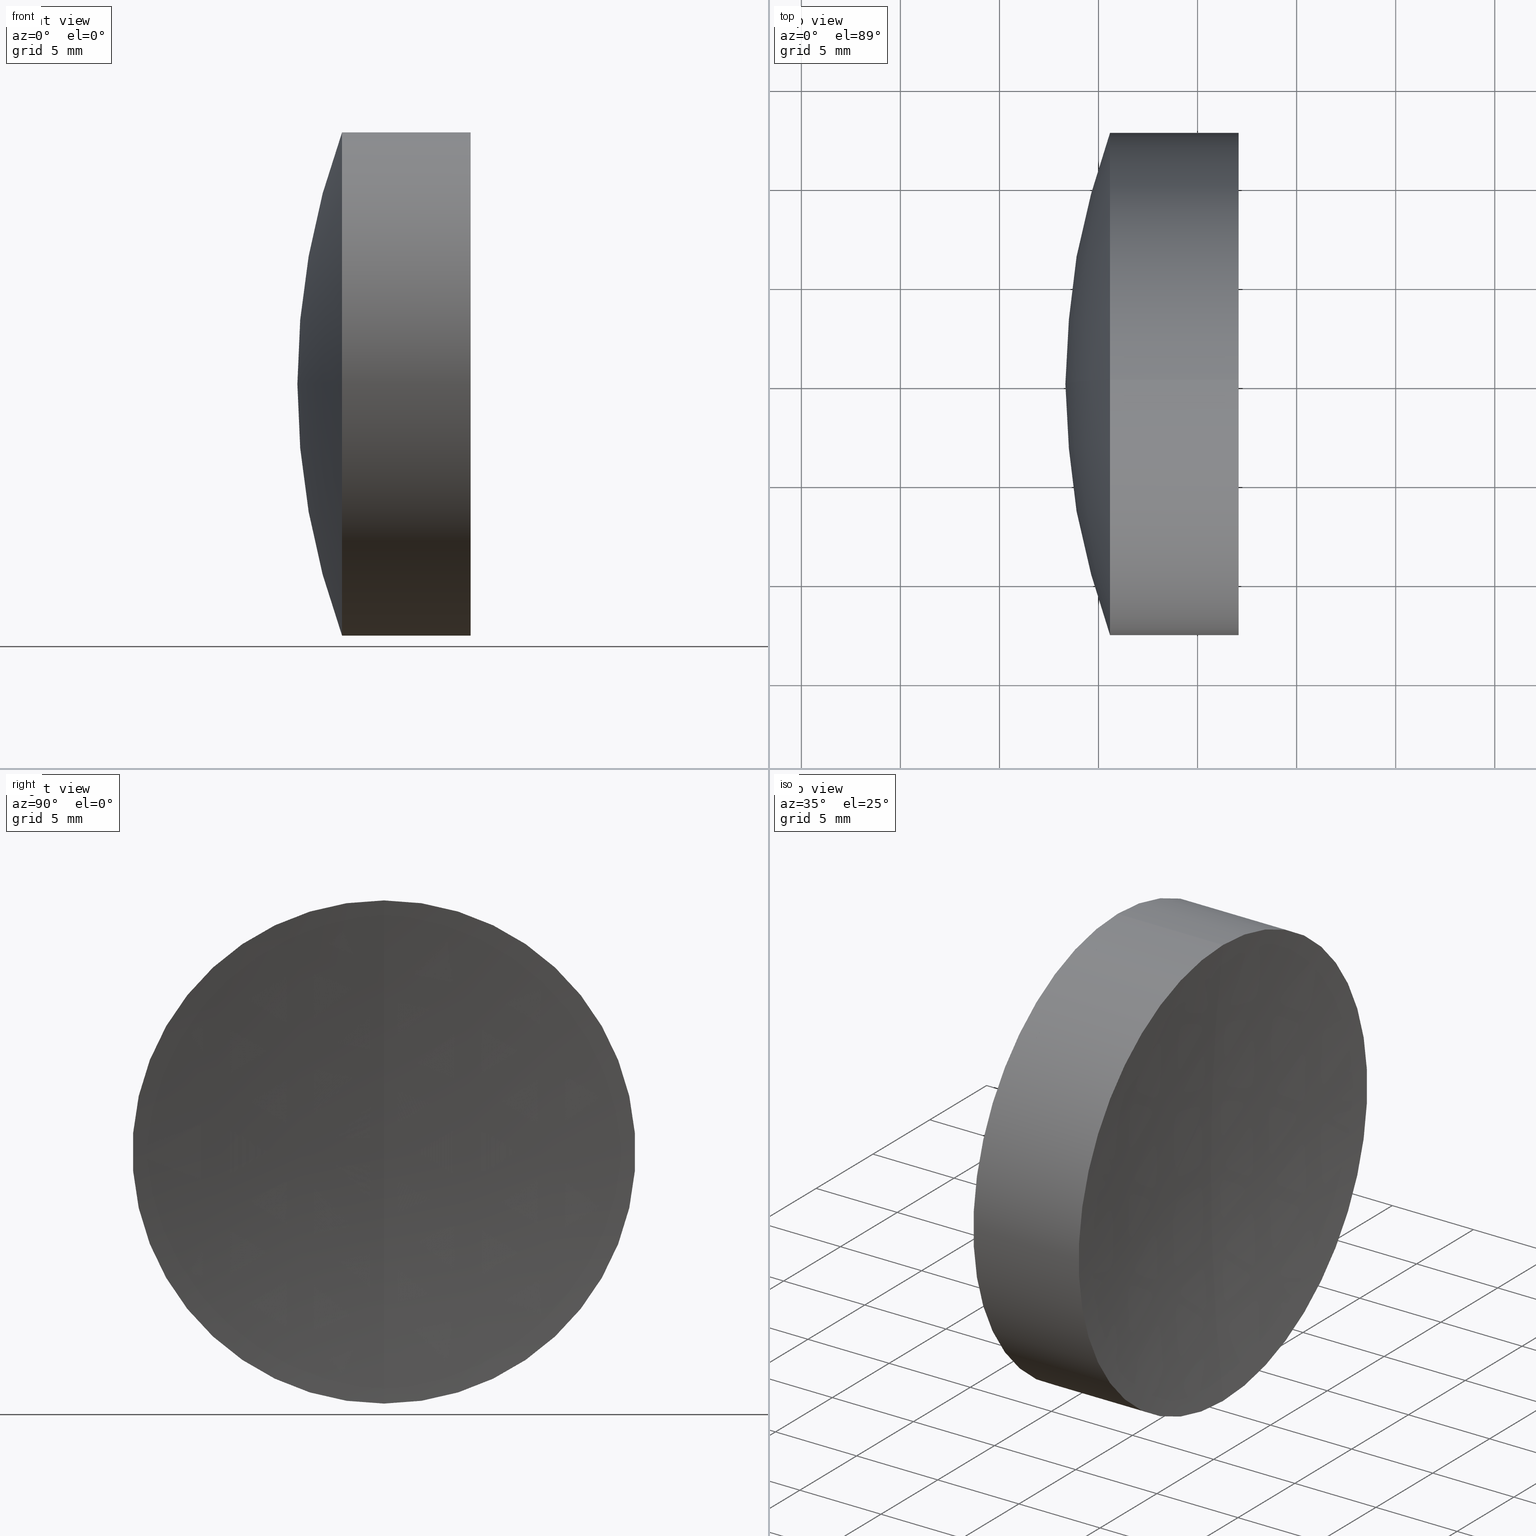
[diagram: canonical four-view strip — front | top / right | iso, engineering-drawing reading convention]
A machine part, canonical four-view strip (front | top / right | iso — engineering-drawing reading convention). The complete STEP part file that produces these views, byte-faithful:
ISO-10303-21;
HEADER;
FILE_DESCRIPTION (( 'STEP AP214' ),
    '1' );
FILE_NAME ('145166.STEP',
    '2019-06-11T05:54:42',
    ( 'user' ),
    ( '΢���й�' ),
    'SwSTEP 2.0',
    'SolidWorks 2016',
    '' );
FILE_SCHEMA (( 'AUTOMOTIVE_DESIGN' ));
ENDSEC;

DATA;
#1 = VERTEX_POINT ( 'NONE', #102 ) ;
#2 = MECHANICAL_DESIGN_GEOMETRIC_PRESENTATION_REPRESENTATION (  '', ( #302 ), #16 ) ;
#3 = AXIS2_PLACEMENT_3D ( 'NONE', #156, #148, #331 ) ;
#4 = ADVANCED_FACE ( 'NONE', ( #270 ), #190, .F. ) ;
#5 = AXIS2_PLACEMENT_3D ( 'NONE', #325, #171, #8 ) ;
#6 = MANIFOLD_SOLID_BREP ( '��ת2', #263 ) ;
#7 = EDGE_LOOP ( 'NONE', ( #238, #172, #186, #173 ) ) ;
#8 = DIRECTION ( 'NONE',  ( 0.0000000000000000000, 0.0000000000000000000, -1.000000000000000000 ) ) ;
#9 = CARTESIAN_POINT ( 'NONE',  ( 51.59793110503332500, 1.555301434917138800E-015, -12.70000000000000300 ) ) ;
#10 = CYLINDRICAL_SURFACE ( 'NONE', #269, 12.70000000000002100 ) ;
#11 = DIRECTION ( 'NONE',  ( 0.0000000000000000000, 0.0000000000000000000, 1.000000000000000000 ) ) ;
#12 = DIRECTION ( 'NONE',  ( 0.0000000000000000000, 1.000000000000000000, 0.0000000000000000000 ) ) ;
#13 = DIRECTION ( 'NONE',  ( -1.000000000000000000, -0.0000000000000000000, -0.0000000000000000000 ) ) ;
#14 = CARTESIAN_POINT ( 'NONE',  ( 50.58156345236027800, 0.0000000000000000000, 0.0000000000000000000 ) ) ;
#15 = DIRECTION ( 'NONE',  ( -1.000000000000000000, -0.0000000000000000000, -0.0000000000000000000 ) ) ;
#16 =( GEOMETRIC_REPRESENTATION_CONTEXT ( 3 ) GLOBAL_UNCERTAINTY_ASSIGNED_CONTEXT ( ( #223 ) ) GLOBAL_UNIT_ASSIGNED_CONTEXT ( ( #231, #54, #21 ) ) REPRESENTATION_CONTEXT ( 'NONE', 'WORKASPACE' ) );
#17 = DIRECTION ( 'NONE',  ( 0.0000000000000000000, 0.0000000000000000000, -1.000000000000000000 ) ) ;
#18 = DIRECTION ( 'NONE',  ( 0.0000000000000000000, 0.0000000000000000000, 1.000000000000000000 ) ) ;
#19 = CARTESIAN_POINT ( 'NONE',  ( -0.8160621761658039000, 1.555301434917138400E-015, -12.69999999999999900 ) ) ;
#20 = AXIS2_PLACEMENT_3D ( 'NONE', #45, #276, #55 ) ;
#21 =( NAMED_UNIT ( * ) SI_UNIT ( $, .STERADIAN. ) SOLID_ANGLE_UNIT ( ) );
#22 = ORIENTED_EDGE ( 'NONE', *, *, #33, .F. ) ;
#23 = FILL_AREA_STYLE ('',( #70 ) ) ;
#24 = STYLED_ITEM ( 'NONE', ( #164 ), #6 ) ;
#25 = DIRECTION ( 'NONE',  ( 0.0000000000000000000, 1.000000000000000000, -0.0000000000000000000 ) ) ;
#26 = CYLINDRICAL_SURFACE ( 'NONE', #217, 12.69999999999999900 ) ;
#27 = DIRECTION ( 'NONE',  ( 0.0000000000000000000, 0.0000000000000000000, 1.000000000000000000 ) ) ;
#28 =( GEOMETRIC_REPRESENTATION_CONTEXT ( 3 ) GLOBAL_UNCERTAINTY_ASSIGNED_CONTEXT ( ( #322 ) ) GLOBAL_UNIT_ASSIGNED_CONTEXT ( ( #285, #57, #313 ) ) REPRESENTATION_CONTEXT ( 'NONE', 'WORKASPACE' ) );
#29 = CIRCLE ( 'NONE', #208, 108.5999999999999900 ) ;
#30 = SURFACE_STYLE_FILL_AREA ( #314 ) ;
#31 = VERTEX_POINT ( 'NONE', #9 ) ;
#32 = CIRCLE ( 'NONE', #137, 108.5999999999999900 ) ;
#33 = EDGE_CURVE ( 'NONE', #229, #253, #242, .T. ) ;
#34 = ORIENTED_EDGE ( 'NONE', *, *, #131, .T. ) ;
#35 = AXIS2_PLACEMENT_3D ( 'NONE', #78, #107, #158 ) ;
#36 = CIRCLE ( 'NONE', #241, 47.50000000000009900 ) ;
#37 = ADVANCED_FACE ( 'NONE', ( #202 ), #53, .T. ) ;
#38 = PRESENTATION_LAYER_ASSIGNMENT (  '', '', ( #95 ) ) ;
#39 = COLOUR_RGB ( '',1.000000000000000000, 1.000000000000000000, 1.000000000000000000 ) ;
#40 = EDGE_LOOP ( 'NONE', ( #230, #61, #246 ) ) ;
#41 = CARTESIAN_POINT ( 'NONE',  ( 57.07234192546903300, 0.0000000000000000000, -12.70000000000000300 ) ) ;
#42 = LINE ( 'NONE', #103, #310 ) ;
#43 = DIRECTION ( 'NONE',  ( -1.000000000000000000, -0.0000000000000000000, -0.0000000000000000000 ) ) ;
#44 = EDGE_LOOP ( 'NONE', ( #65, #67, #121 ) ) ;
#45 = CARTESIAN_POINT ( 'NONE',  ( 85.22719809801223800, 0.0000000000000000000, 1.005188016315488500E-014 ) ) ;
#46 = CARTESIAN_POINT ( 'NONE',  ( 51.59793110503332500, 0.0000000000000000000, 0.0000000000000000000 ) ) ;
#47 = CIRCLE ( 'NONE', #315, 47.50000000000009900 ) ;
#48 = MECHANICAL_DESIGN_GEOMETRIC_PRESENTATION_REPRESENTATION (  '', ( #95 ), #28 ) ;
#49 = DIRECTION ( 'NONE',  ( -0.0000000000000000000, -1.000000000000000000, -0.0000000000000000000 ) ) ;
#50 = DIRECTION ( 'NONE',  ( 0.0000000000000000000, 0.0000000000000000000, 1.000000000000000000 ) ) ;
#51 = DIRECTION ( 'NONE',  ( -0.0000000000000000000, -1.000000000000000000, -0.0000000000000000000 ) ) ;
#52 = DIRECTION ( 'NONE',  ( -1.000000000000000000, -0.0000000000000000000, -0.0000000000000000000 ) ) ;
#53 = CYLINDRICAL_SURFACE ( 'NONE', #335, 12.70000000000002100 ) ;
#54 =( NAMED_UNIT ( * ) PLANE_ANGLE_UNIT ( ) SI_UNIT ( $, .RADIAN. ) );
#55 = DIRECTION ( 'NONE',  ( 0.0000000000000000000, 0.0000000000000000000, -1.000000000000000000 ) ) ;
#56 = VERTEX_POINT ( 'NONE', #41 ) ;
#57 =( NAMED_UNIT ( * ) PLANE_ANGLE_UNIT ( ) SI_UNIT ( $, .RADIAN. ) );
#58 = ORIENTED_EDGE ( 'NONE', *, *, #332, .F. ) ;
#59 = AXIS2_PLACEMENT_3D ( 'NONE', #160, #226, #149 ) ;
#60 = AXIS2_PLACEMENT_3D ( 'NONE', #228, #52, #204 ) ;
#61 = ORIENTED_EDGE ( 'NONE', *, *, #154, .T. ) ;
#62 = ORIENTED_EDGE ( 'NONE', *, *, #232, .T. ) ;
#63 = PRESENTATION_STYLE_ASSIGNMENT (( #343 ) ) ;
#64 = AXIS2_PLACEMENT_3D ( 'NONE', #295, #90, #271 ) ;
#65 = ORIENTED_EDGE ( 'NONE', *, *, #154, .F. ) ;
#66 = COLOUR_RGB ( '',1.000000000000000000, 1.000000000000000000, 1.000000000000000000 ) ;
#67 = ORIENTED_EDGE ( 'NONE', *, *, #188, .T. ) ;
#68 = DIRECTION ( 'NONE',  ( 0.0000000000000000000, 0.0000000000000000000, 1.000000000000000000 ) ) ;
#69 = FACE_OUTER_BOUND ( 'NONE', #44, .T. ) ;
#70 = FILL_AREA_STYLE_COLOUR ( '', #198 ) ;
#71 = DIRECTION ( 'NONE',  ( 0.0000000000000000000, 0.0000000000000000000, 1.000000000000000000 ) ) ;
#72 = PRODUCT_DEFINITION_SHAPE ( 'NONE', 'NONE',  #87 ) ;
#73 = DIRECTION ( 'NONE',  ( 0.0000000000000000000, 1.224646799147353200E-016, -1.000000000000000000 ) ) ;
#74 = ORIENTED_EDGE ( 'NONE', *, *, #86, .F. ) ;
#75 = PRESENTATION_LAYER_ASSIGNMENT (  '', '', ( #24 ) ) ;
#76 = AXIS2_PLACEMENT_3D ( 'NONE', #255, #132, #309 ) ;
#77 = SPHERICAL_SURFACE ( 'NONE', #20, 36.89999999999999900 ) ;
#78 = CARTESIAN_POINT ( 'NONE',  ( 85.22719809801223800, 0.0000000000000000000, 1.005188016315488500E-014 ) ) ;
#79 = LINE ( 'NONE', #19, #80 ) ;
#80 = VECTOR ( 'NONE', #182, 1000.000000000000000 ) ;
#81 = FACE_OUTER_BOUND ( 'NONE', #278, .T. ) ;
#82 = ORIENTED_EDGE ( 'NONE', *, *, #116, .F. ) ;
#83 = EDGE_CURVE ( 'NONE', #93, #31, #316, .T. ) ;
#84 = CIRCLE ( 'NONE', #250, 12.70000000000002100 ) ;
#85 = ADVANCED_FACE ( 'NONE', ( #183 ), #243, .T. ) ;
#86 = EDGE_CURVE ( 'NONE', #1, #253, #280, .T. ) ;
#87 = PRODUCT_DEFINITION ( 'δ֪', '', #111, #215 ) ;
#88 = EDGE_LOOP ( 'NONE', ( #210, #240, #82 ) ) ;
#89 = EDGE_CURVE ( 'NONE', #345, #212, #119, .T. ) ;
#90 = DIRECTION ( 'NONE',  ( 0.0000000000000000000, 1.000000000000000000, 0.0000000000000000000 ) ) ;
#91 = CIRCLE ( 'NONE', #199, 12.70000000000002100 ) ;
#92 = DIRECTION ( 'NONE',  ( 0.0000000000000000000, 1.000000000000000000, 0.0000000000000000000 ) ) ;
#93 = VERTEX_POINT ( 'NONE', #249 ) ;
#94 = DIRECTION ( 'NONE',  ( 0.0000000000000000000, 0.0000000000000000000, 1.000000000000000000 ) ) ;
#95 = STYLED_ITEM ( 'NONE', ( #339 ), #110 ) ;
#96 = CARTESIAN_POINT ( 'NONE',  ( 50.58156345236027800, -1.555301434917137600E-015, 12.70000000000000300 ) ) ;
#97 = CARTESIAN_POINT ( 'NONE',  ( 164.9271980980123300, 0.0000000000000000000, 0.0000000000000000000 ) ) ;
#98 = CIRCLE ( 'NONE', #237, 12.70000000000002100 ) ;
#99 = CARTESIAN_POINT ( 'NONE',  ( 57.07234192546902600, 0.0000000000000000000, 0.0000000000000000000 ) ) ;
#100 = EDGE_CURVE ( 'NONE', #56, #265, #254, .T. ) ;
#101 = DIRECTION ( 'NONE',  ( 0.0000000000000000000, -1.224646799147353000E-016, 1.000000000000000000 ) ) ;
#102 = CARTESIAN_POINT ( 'NONE',  ( 57.07234192546903300, -1.555301434917139000E-015, 12.70000000000000300 ) ) ;
#103 = CARTESIAN_POINT ( 'NONE',  ( -0.8160621761658039000, 0.0000000000000000000, 12.69999999999999900 ) ) ;
#104 = ORIENTED_EDGE ( 'NONE', *, *, #311, .T. ) ;
#105 = APPLICATION_CONTEXT ( 'automotive_design' ) ;
#106 = CIRCLE ( 'NONE', #169, 12.70000000000000100 ) ;
#107 = DIRECTION ( 'NONE',  ( 0.0000000000000000000, -1.000000000000000000, -1.224646799147353200E-016 ) ) ;
#108 = EDGE_LOOP ( 'NONE', ( #306, #320, #290 ) ) ;
#109 = EDGE_CURVE ( 'NONE', #345, #112, #264, .T. ) ;
#110 = MANIFOLD_SOLID_BREP ( '��ת1', #122 ) ;
#111 = PRODUCT_DEFINITION_FORMATION_WITH_SPECIFIED_SOURCE ( '�κ�', '', #319, .NOT_KNOWN. ) ;
#112 = VERTEX_POINT ( 'NONE', #258 ) ;
#113 = ADVANCED_FACE ( 'NONE', ( #281 ), #77, .T. ) ;
#114 = ADVANCED_FACE ( 'NONE', ( #81 ), #282, .F. ) ;
#115 = AXIS2_PLACEMENT_3D ( 'NONE', #220, #327, #162 ) ;
#116 = EDGE_CURVE ( 'NONE', #212, #112, #144, .T. ) ;
#117 = APPLICATION_PROTOCOL_DEFINITION ( 'draft international standard', 'automotive_design', 1998, #105 ) ;
#118 = DIRECTION ( 'NONE',  ( -1.000000000000000000, -0.0000000000000000000, -0.0000000000000000000 ) ) ;
#119 = CIRCLE ( 'NONE', #267, 12.69999999999999900 ) ;
#120 = CARTESIAN_POINT ( 'NONE',  ( -0.5519199926577972300, 1.555301434917141000E-015, -12.70000000000002100 ) ) ;
#121 = ORIENTED_EDGE ( 'NONE', *, *, #83, .F. ) ;
#122 = CLOSED_SHELL ( 'NONE', ( #142, #266, #214, #113, #170, #85 ) ) ;
#123 = EDGE_CURVE ( 'NONE', #56, #139, #29, .T. ) ;
#124 =( LENGTH_UNIT ( ) NAMED_UNIT ( * ) SI_UNIT ( .MILLI., .METRE. ) );
#125 = DIRECTION ( 'NONE',  ( -1.000000000000000000, -0.0000000000000000000, -0.0000000000000000000 ) ) ;
#126 = ORIENTED_EDGE ( 'NONE', *, *, #161, .F. ) ;
#127 = DIRECTION ( 'NONE',  ( 0.0000000000000000000, 0.0000000000000000000, 1.000000000000000000 ) ) ;
#128 = PRODUCT_RELATED_PRODUCT_CATEGORY ( 'part', '', ( #319 ) ) ;
#129 = CARTESIAN_POINT ( 'NONE',  ( 50.58156345236027800, 0.0000000000000000000, -12.69999999999999200 ) ) ;
#130 = SURFACE_STYLE_FILL_AREA ( #342 ) ;
#131 = EDGE_CURVE ( 'NONE', #56, #1, #98, .T. ) ;
#132 = DIRECTION ( 'NONE',  ( 0.0000000000000000000, 0.0000000000000000000, 1.000000000000000000 ) ) ;
#133 = ORIENTED_EDGE ( 'NONE', *, *, #116, .T. ) ;
#134 = VERTEX_POINT ( 'NONE', #344 ) ;
#135 = CARTESIAN_POINT ( 'NONE',  ( 56.32719809801233200, 0.0000000000000000000, -6.649832119370127500E-015 ) ) ;
#136 = SURFACE_STYLE_FILL_AREA ( #23 ) ;
#137 = AXIS2_PLACEMENT_3D ( 'NONE', #97, #251, #73 ) ;
#138 = ORIENTED_EDGE ( 'NONE', *, *, #109, .F. ) ;
#139 = VERTEX_POINT ( 'NONE', #135 ) ;
#140 = FACE_OUTER_BOUND ( 'NONE', #146, .T. ) ;
#141 = ADVANCED_FACE ( 'NONE', ( #211 ), #163, .F. ) ;
#142 = ADVANCED_FACE ( 'NONE', ( #69 ), #273, .T. ) ;
#143 = ORIENTED_EDGE ( 'NONE', *, *, #100, .F. ) ;
#144 = CIRCLE ( 'NONE', #317, 36.89999999999999900 ) ;
#145 = CARTESIAN_POINT ( 'NONE',  ( -0.5519199926577972300, 0.0000000000000000000, 0.0000000000000000000 ) ) ;
#146 = EDGE_LOOP ( 'NONE', ( #272, #337, #192, #165 ) ) ;
#147 =( NAMED_UNIT ( * ) PLANE_ANGLE_UNIT ( ) SI_UNIT ( $, .RADIAN. ) );
#148 = DIRECTION ( 'NONE',  ( 0.0000000000000000000, 1.000000000000000000, 0.0000000000000000000 ) ) ;
#149 = DIRECTION ( 'NONE',  ( 0.0000000000000000000, 0.0000000000000000000, -1.000000000000000000 ) ) ;
#150 = AXIS2_PLACEMENT_3D ( 'NONE', #203, #51, #17 ) ;
#151 = DIRECTION ( 'NONE',  ( 0.0000000000000000000, 0.0000000000000000000, 1.000000000000000000 ) ) ;
#152 = DIRECTION ( 'NONE',  ( 0.0000000000000000000, 0.0000000000000000000, -1.000000000000000000 ) ) ;
#153 = CARTESIAN_POINT ( 'NONE',  ( 5.827198098012243800, 0.0000000000000000000, -1.207122003785225600E-014 ) ) ;
#154 = EDGE_CURVE ( 'NONE', #134, #93, #36, .T. ) ;
#155 = DIRECTION ( 'NONE',  ( -0.0000000000000000000, 1.000000000000000000, 1.224646799147353200E-016 ) ) ;
#156 = CARTESIAN_POINT ( 'NONE',  ( 5.827198098012243800, 0.0000000000000000000, -1.207122003785225600E-014 ) ) ;
#157 = ORIENTED_EDGE ( 'NONE', *, *, #311, .F. ) ;
#158 = DIRECTION ( 'NONE',  ( 0.0000000000000000000, 1.224646799147353000E-016, -1.000000000000000000 ) ) ;
#159 = EDGE_CURVE ( 'NONE', #1, #56, #334, .T. ) ;
#160 = CARTESIAN_POINT ( 'NONE',  ( 164.9271980980123300, 0.0000000000000000000, 0.0000000000000000000 ) ) ;
#161 = EDGE_CURVE ( 'NONE', #229, #265, #225, .T. ) ;
#162 = DIRECTION ( 'NONE',  ( 0.0000000000000000000, 0.0000000000000000000, 1.000000000000000000 ) ) ;
#163 = SPHERICAL_SURFACE ( 'NONE', #59, 108.5999999999999900 ) ;
#164 = PRESENTATION_STYLE_ASSIGNMENT (( #298 ) ) ;
#165 = ORIENTED_EDGE ( 'NONE', *, *, #178, .F. ) ;
#166 = FACE_OUTER_BOUND ( 'NONE', #7, .T. ) ;
#167 = EDGE_LOOP ( 'NONE', ( #126, #318, #104 ) ) ;
#168 = ADVANCED_BREP_SHAPE_REPRESENTATION ( '145166', ( #110, #6, #76 ), #236 ) ;
#169 = AXIS2_PLACEMENT_3D ( 'NONE', #200, #15, #180 ) ;
#170 = ADVANCED_FACE ( 'NONE', ( #140 ), #303, .T. ) ;
#171 = DIRECTION ( 'NONE',  ( 0.0000000000000000000, -1.000000000000000000, 0.0000000000000000000 ) ) ;
#172 = ORIENTED_EDGE ( 'NONE', *, *, #209, .T. ) ;
#173 = ORIENTED_EDGE ( 'NONE', *, *, #213, .F. ) ;
#174 =( NAMED_UNIT ( * ) SI_UNIT ( $, .STERADIAN. ) SOLID_ANGLE_UNIT ( ) );
#175 = SPHERICAL_SURFACE ( 'NONE', #189, 108.5999999999999900 ) ;
#176 = CARTESIAN_POINT ( 'NONE',  ( -0.5519199926577972300, 0.0000000000000000000, 12.70000000000002100 ) ) ;
#177 = EDGE_LOOP ( 'NONE', ( #138, #234, #133 ) ) ;
#178 = EDGE_CURVE ( 'NONE', #212, #345, #289, .T. ) ;
#179 = CARTESIAN_POINT ( 'NONE',  ( 51.59793110503332500, 0.0000000000000000000, 0.0000000000000000000 ) ) ;
#180 = DIRECTION ( 'NONE',  ( 0.0000000000000000000, 0.0000000000000000000, 1.000000000000000000 ) ) ;
#181 = DIRECTION ( 'NONE',  ( -1.000000000000000000, -0.0000000000000000000, -0.0000000000000000000 ) ) ;
#182 = DIRECTION ( 'NONE',  ( -1.000000000000000000, -0.0000000000000000000, -0.0000000000000000000 ) ) ;
#183 = FACE_OUTER_BOUND ( 'NONE', #40, .T. ) ;
#184 = DIRECTION ( 'NONE',  ( -0.0000000000000000000, 1.000000000000000000, 1.224646799147353200E-016 ) ) ;
#185 = CARTESIAN_POINT ( 'NONE',  ( 51.59793110503332500, 0.0000000000000000000, 0.0000000000000000000 ) ) ;
#186 = ORIENTED_EDGE ( 'NONE', *, *, #89, .F. ) ;
#187 = DIRECTION ( 'NONE',  ( -1.000000000000000000, -0.0000000000000000000, -0.0000000000000000000 ) ) ;
#188 = EDGE_CURVE ( 'NONE', #134, #31, #47, .T. ) ;
#189 = AXIS2_PLACEMENT_3D ( 'NONE', #277, #49, #248 ) ;
#190 = SPHERICAL_SURFACE ( 'NONE', #3, 47.50000000000009900 ) ;
#191 = VECTOR ( 'NONE', #187, 1000.000000000000000 ) ;
#192 = ORIENTED_EDGE ( 'NONE', *, *, #213, .T. ) ;
#193 = EDGE_LOOP ( 'NONE', ( #143, #34, #328, #58 ) ) ;
#194 = AXIS2_PLACEMENT_3D ( 'NONE', #301, #12, #68 ) ;
#195 = EDGE_LOOP ( 'NONE', ( #291, #312, #157, #74 ) ) ;
#196 = VECTOR ( 'NONE', #43, 1000.000000000000000 ) ;
#197 = DIRECTION ( 'NONE',  ( -1.000000000000000000, -0.0000000000000000000, -0.0000000000000000000 ) ) ;
#198 = COLOUR_RGB ( '',1.000000000000000000, 1.000000000000000000, 1.000000000000000000 ) ;
#199 = AXIS2_PLACEMENT_3D ( 'NONE', #179, #333, #299 ) ;
#200 = CARTESIAN_POINT ( 'NONE',  ( 51.59793110503332500, 0.0000000000000000000, 0.0000000000000000000 ) ) ;
#201 = UNCERTAINTY_MEASURE_WITH_UNIT (LENGTH_MEASURE( 1.000000000000000100E-005 ), #330, 'distance_accuracy_value', 'NONE');
#202 = FACE_OUTER_BOUND ( 'NONE', #195, .T. ) ;
#203 = CARTESIAN_POINT ( 'NONE',  ( 85.22719809801223800, 0.0000000000000000000, 1.005188016315488500E-014 ) ) ;
#204 = DIRECTION ( 'NONE',  ( 0.0000000000000000000, 0.0000000000000000000, 1.000000000000000000 ) ) ;
#205 = PRODUCT_CONTEXT ( 'NONE', #341, 'mechanical' ) ;
#206 = SURFACE_SIDE_STYLE ('',( #136 ) ) ;
#207 = CARTESIAN_POINT ( 'NONE',  ( 164.9271980980123300, 0.0000000000000000000, 0.0000000000000000000 ) ) ;
#208 = AXIS2_PLACEMENT_3D ( 'NONE', #207, #25, #218 ) ;
#209 = EDGE_CURVE ( 'NONE', #31, #212, #79, .T. ) ;
#210 = ORIENTED_EDGE ( 'NONE', *, *, #178, .T. ) ;
#211 = FACE_OUTER_BOUND ( 'NONE', #326, .T. ) ;
#212 = VERTEX_POINT ( 'NONE', #129 ) ;
#213 = EDGE_CURVE ( 'NONE', #93, #345, #42, .T. ) ;
#214 = ADVANCED_FACE ( 'NONE', ( #288 ), #239, .T. ) ;
#215 = PRODUCT_DEFINITION_CONTEXT ( 'detailed design', #105, 'design' ) ;
#216 = MECHANICAL_DESIGN_GEOMETRIC_PRESENTATION_REPRESENTATION (  '', ( #24 ), #323 ) ;
#217 = AXIS2_PLACEMENT_3D ( 'NONE', #224, #125, #151 ) ;
#218 = DIRECTION ( 'NONE',  ( 0.0000000000000000000, 0.0000000000000000000, 1.000000000000000000 ) ) ;
#219 = FACE_OUTER_BOUND ( 'NONE', #193, .T. ) ;
#220 = CARTESIAN_POINT ( 'NONE',  ( -0.8160621761658039000, 0.0000000000000000000, 0.0000000000000000000 ) ) ;
#221 = AXIS2_PLACEMENT_3D ( 'NONE', #284, #184, #101 ) ;
#222 = CARTESIAN_POINT ( 'NONE',  ( -0.5519199926577972300, 0.0000000000000000000, 0.0000000000000000000 ) ) ;
#223 = UNCERTAINTY_MEASURE_WITH_UNIT (LENGTH_MEASURE( 1.000000000000000100E-005 ), #231, 'distance_accuracy_value', 'NONE');
#224 = CARTESIAN_POINT ( 'NONE',  ( -0.8160621761658039000, 0.0000000000000000000, 0.0000000000000000000 ) ) ;
#225 = CIRCLE ( 'NONE', #221, 47.50000000000009900 ) ;
#226 = DIRECTION ( 'NONE',  ( -0.0000000000000000000, -1.000000000000000000, -0.0000000000000000000 ) ) ;
#227 = DIRECTION ( 'NONE',  ( -1.000000000000000000, -0.0000000000000000000, -0.0000000000000000000 ) ) ;
#228 = CARTESIAN_POINT ( 'NONE',  ( 50.58156345236027800, 0.0000000000000000000, 0.0000000000000000000 ) ) ;
#229 = VERTEX_POINT ( 'NONE', #252 ) ;
#230 = ORIENTED_EDGE ( 'NONE', *, *, #188, .F. ) ;
#231 =( LENGTH_UNIT ( ) NAMED_UNIT ( * ) SI_UNIT ( .MILLI., .METRE. ) );
#232 = EDGE_CURVE ( 'NONE', #1, #139, #32, .T. ) ;
#233 = SHAPE_DEFINITION_REPRESENTATION ( #72, #168 ) ;
#234 = ORIENTED_EDGE ( 'NONE', *, *, #89, .T. ) ;
#235 = CARTESIAN_POINT ( 'NONE',  ( 85.22719809801223800, 0.0000000000000000000, 1.005188016315488500E-014 ) ) ;
#236 =( GEOMETRIC_REPRESENTATION_CONTEXT ( 3 ) GLOBAL_UNCERTAINTY_ASSIGNED_CONTEXT ( ( #201 ) ) GLOBAL_UNIT_ASSIGNED_CONTEXT ( ( #330, #147, #296 ) ) REPRESENTATION_CONTEXT ( 'NONE', 'WORKASPACE' ) );
#237 = AXIS2_PLACEMENT_3D ( 'NONE', #99, #304, #127 ) ;
#238 = ORIENTED_EDGE ( 'NONE', *, *, #83, .T. ) ;
#239 = SPHERICAL_SURFACE ( 'NONE', #150, 36.89999999999999900 ) ;
#240 = ORIENTED_EDGE ( 'NONE', *, *, #109, .T. ) ;
#241 = AXIS2_PLACEMENT_3D ( 'NONE', #287, #293, #152 ) ;
#242 = CIRCLE ( 'NONE', #5, 47.50000000000009900 ) ;
#243 = SPHERICAL_SURFACE ( 'NONE', #64, 47.50000000000009900 ) ;
#244 = DIRECTION ( 'NONE',  ( -1.000000000000000000, -0.0000000000000000000, -0.0000000000000000000 ) ) ;
#245 = DIRECTION ( 'NONE',  ( 0.0000000000000000000, 0.0000000000000000000, 1.000000000000000000 ) ) ;
#246 = ORIENTED_EDGE ( 'NONE', *, *, #247, .F. ) ;
#247 = EDGE_CURVE ( 'NONE', #31, #93, #106, .T. ) ;
#248 = DIRECTION ( 'NONE',  ( 0.0000000000000000000, 0.0000000000000000000, -1.000000000000000000 ) ) ;
#249 = CARTESIAN_POINT ( 'NONE',  ( 51.59793110503332500, 0.0000000000000000000, 12.70000000000000100 ) ) ;
#250 = AXIS2_PLACEMENT_3D ( 'NONE', #46, #197, #11 ) ;
#251 = DIRECTION ( 'NONE',  ( 0.0000000000000000000, -1.000000000000000000, -1.224646799147353200E-016 ) ) ;
#252 = CARTESIAN_POINT ( 'NONE',  ( 53.32719809801233900, 0.0000000000000000000, -9.162683889877284900E-015 ) ) ;
#253 = VERTEX_POINT ( 'NONE', #336 ) ;
#254 = LINE ( 'NONE', #120, #191 ) ;
#255 = CARTESIAN_POINT ( 'NONE',  ( 0.0000000000000000000, 0.0000000000000000000, 0.0000000000000000000 ) ) ;
#256 = FILL_AREA_STYLE_COLOUR ( '', #66 ) ;
#257 = ORIENTED_EDGE ( 'NONE', *, *, #161, .T. ) ;
#258 = CARTESIAN_POINT ( 'NONE',  ( 48.32719809801224600, 0.0000000000000000000, 7.792406818728018300E-015 ) ) ;
#259 = SURFACE_SIDE_STYLE ('',( #30 ) ) ;
#260 = AXIS2_PLACEMENT_3D ( 'NONE', #338, #181, #18 ) ;
#261 = DIRECTION ( 'NONE',  ( 0.0000000000000000000, 1.000000000000000000, -0.0000000000000000000 ) ) ;
#262 = UNCERTAINTY_MEASURE_WITH_UNIT (LENGTH_MEASURE( 1.000000000000000100E-005 ), #124, 'distance_accuracy_value', 'NONE');
#263 = CLOSED_SHELL ( 'NONE', ( #37, #141, #114, #4, #268, #321 ) ) ;
#264 = CIRCLE ( 'NONE', #35, 36.89999999999999900 ) ;
#265 = VERTEX_POINT ( 'NONE', #279 ) ;
#266 = ADVANCED_FACE ( 'NONE', ( #166 ), #26, .T. ) ;
#267 = AXIS2_PLACEMENT_3D ( 'NONE', #14, #347, #50 ) ;
#268 = ADVANCED_FACE ( 'NONE', ( #294 ), #175, .F. ) ;
#269 = AXIS2_PLACEMENT_3D ( 'NONE', #222, #13, #71 ) ;
#270 = FACE_OUTER_BOUND ( 'NONE', #167, .T. ) ;
#271 = DIRECTION ( 'NONE',  ( 0.0000000000000000000, 0.0000000000000000000, 1.000000000000000000 ) ) ;
#272 = ORIENTED_EDGE ( 'NONE', *, *, #209, .F. ) ;
#273 = SPHERICAL_SURFACE ( 'NONE', #194, 47.50000000000009900 ) ;
#274 =( NAMED_UNIT ( * ) PLANE_ANGLE_UNIT ( ) SI_UNIT ( $, .RADIAN. ) );
#275 = AXIS2_PLACEMENT_3D ( 'NONE', #185, #244, #245 ) ;
#276 = DIRECTION ( 'NONE',  ( -0.0000000000000000000, -1.000000000000000000, -0.0000000000000000000 ) ) ;
#277 = CARTESIAN_POINT ( 'NONE',  ( 164.9271980980123300, 0.0000000000000000000, 0.0000000000000000000 ) ) ;
#278 = EDGE_LOOP ( 'NONE', ( #22, #257, #292 ) ) ;
#279 = CARTESIAN_POINT ( 'NONE',  ( 51.59793110503333200, 1.555301434917139200E-015, -12.70000000000001900 ) ) ;
#280 = LINE ( 'NONE', #176, #196 ) ;
#281 = FACE_OUTER_BOUND ( 'NONE', #177, .T. ) ;
#282 = SPHERICAL_SURFACE ( 'NONE', #346, 47.50000000000009900 ) ;
#283 = FILL_AREA_STYLE_COLOUR ( '', #39 ) ;
#284 = CARTESIAN_POINT ( 'NONE',  ( 5.827198098012243800, 0.0000000000000000000, -1.207122003785225600E-014 ) ) ;
#285 =( LENGTH_UNIT ( ) NAMED_UNIT ( * ) SI_UNIT ( .MILLI., .METRE. ) );
#286 = SURFACE_STYLE_USAGE ( .BOTH. , #329 ) ;
#287 = CARTESIAN_POINT ( 'NONE',  ( 5.827198098012243800, 0.0000000000000000000, -1.207122003785225600E-014 ) ) ;
#288 = FACE_OUTER_BOUND ( 'NONE', #88, .T. ) ;
#289 = CIRCLE ( 'NONE', #60, 12.69999999999999900 ) ;
#290 = ORIENTED_EDGE ( 'NONE', *, *, #123, .T. ) ;
#291 = ORIENTED_EDGE ( 'NONE', *, *, #159, .T. ) ;
#292 = ORIENTED_EDGE ( 'NONE', *, *, #332, .T. ) ;
#293 = DIRECTION ( 'NONE',  ( 0.0000000000000000000, -1.000000000000000000, 0.0000000000000000000 ) ) ;
#294 = FACE_OUTER_BOUND ( 'NONE', #108, .T. ) ;
#295 = CARTESIAN_POINT ( 'NONE',  ( 5.827198098012243800, 0.0000000000000000000, -1.207122003785225600E-014 ) ) ;
#296 =( NAMED_UNIT ( * ) SI_UNIT ( $, .STERADIAN. ) SOLID_ANGLE_UNIT ( ) );
#297 = ORIENTED_EDGE ( 'NONE', *, *, #159, .F. ) ;
#298 = SURFACE_STYLE_USAGE ( .BOTH. , #259 ) ;
#299 = DIRECTION ( 'NONE',  ( 0.0000000000000000000, 0.0000000000000000000, 1.000000000000000000 ) ) ;
#300 = DIRECTION ( 'NONE',  ( 0.0000000000000000000, 0.0000000000000000000, 1.000000000000000000 ) ) ;
#301 = CARTESIAN_POINT ( 'NONE',  ( 5.827198098012243800, 0.0000000000000000000, -1.207122003785225600E-014 ) ) ;
#302 = STYLED_ITEM ( 'NONE', ( #63 ), #168 ) ;
#303 = CYLINDRICAL_SURFACE ( 'NONE', #115, 12.69999999999999900 ) ;
#304 = DIRECTION ( 'NONE',  ( -1.000000000000000000, -0.0000000000000000000, -0.0000000000000000000 ) ) ;
#305 = DIRECTION ( 'NONE',  ( 0.0000000000000000000, -1.224646799147353000E-016, 1.000000000000000000 ) ) ;
#306 = ORIENTED_EDGE ( 'NONE', *, *, #232, .F. ) ;
#307 = ORIENTED_EDGE ( 'NONE', *, *, #123, .F. ) ;
#308 = APPLICATION_PROTOCOL_DEFINITION ( 'draft international standard', 'automotive_design', 1998, #341 ) ;
#309 = DIRECTION ( 'NONE',  ( 1.000000000000000000, 0.0000000000000000000, 0.0000000000000000000 ) ) ;
#310 = VECTOR ( 'NONE', #227, 1000.000000000000000 ) ;
#311 = EDGE_CURVE ( 'NONE', #253, #265, #91, .T. ) ;
#312 = ORIENTED_EDGE ( 'NONE', *, *, #100, .T. ) ;
#313 =( NAMED_UNIT ( * ) SI_UNIT ( $, .STERADIAN. ) SOLID_ANGLE_UNIT ( ) );
#314 = FILL_AREA_STYLE ('',( #283 ) ) ;
#315 = AXIS2_PLACEMENT_3D ( 'NONE', #340, #155, #305 ) ;
#316 = CIRCLE ( 'NONE', #275, 12.70000000000000100 ) ;
#317 = AXIS2_PLACEMENT_3D ( 'NONE', #235, #261, #27 ) ;
#318 = ORIENTED_EDGE ( 'NONE', *, *, #33, .T. ) ;
#319 = PRODUCT ( '145166', '145166', '', ( #205 ) ) ;
#320 = ORIENTED_EDGE ( 'NONE', *, *, #131, .F. ) ;
#321 = ADVANCED_FACE ( 'NONE', ( #219 ), #10, .T. ) ;
#322 = UNCERTAINTY_MEASURE_WITH_UNIT (LENGTH_MEASURE( 1.000000000000000100E-005 ), #285, 'distance_accuracy_value', 'NONE');
#323 =( GEOMETRIC_REPRESENTATION_CONTEXT ( 3 ) GLOBAL_UNCERTAINTY_ASSIGNED_CONTEXT ( ( #262 ) ) GLOBAL_UNIT_ASSIGNED_CONTEXT ( ( #124, #274, #174 ) ) REPRESENTATION_CONTEXT ( 'NONE', 'WORKASPACE' ) );
#324 = PRESENTATION_LAYER_ASSIGNMENT (  '', '', ( #302 ) ) ;
#325 = CARTESIAN_POINT ( 'NONE',  ( 5.827198098012243800, 0.0000000000000000000, -1.207122003785225600E-014 ) ) ;
#326 = EDGE_LOOP ( 'NONE', ( #297, #62, #307 ) ) ;
#327 = DIRECTION ( 'NONE',  ( -1.000000000000000000, -0.0000000000000000000, -0.0000000000000000000 ) ) ;
#328 = ORIENTED_EDGE ( 'NONE', *, *, #86, .T. ) ;
#329 = SURFACE_SIDE_STYLE ('',( #130 ) ) ;
#330 =( LENGTH_UNIT ( ) NAMED_UNIT ( * ) SI_UNIT ( .MILLI., .METRE. ) );
#331 = DIRECTION ( 'NONE',  ( 0.0000000000000000000, 0.0000000000000000000, 1.000000000000000000 ) ) ;
#332 = EDGE_CURVE ( 'NONE', #265, #253, #84, .T. ) ;
#333 = DIRECTION ( 'NONE',  ( -1.000000000000000000, -0.0000000000000000000, -0.0000000000000000000 ) ) ;
#334 = CIRCLE ( 'NONE', #260, 12.70000000000002100 ) ;
#335 = AXIS2_PLACEMENT_3D ( 'NONE', #145, #118, #300 ) ;
#336 = CARTESIAN_POINT ( 'NONE',  ( 51.59793110503333200, 0.0000000000000000000, 12.70000000000000600 ) ) ;
#337 = ORIENTED_EDGE ( 'NONE', *, *, #247, .T. ) ;
#338 = CARTESIAN_POINT ( 'NONE',  ( 57.07234192546902600, 0.0000000000000000000, 0.0000000000000000000 ) ) ;
#339 = PRESENTATION_STYLE_ASSIGNMENT (( #286 ) ) ;
#340 = CARTESIAN_POINT ( 'NONE',  ( 5.827198098012243800, 0.0000000000000000000, -1.207122003785225600E-014 ) ) ;
#341 = APPLICATION_CONTEXT ( 'automotive_design' ) ;
#342 = FILL_AREA_STYLE ('',( #256 ) ) ;
#343 = SURFACE_STYLE_USAGE ( .BOTH. , #206 ) ;
#344 = CARTESIAN_POINT ( 'NONE',  ( 53.32719809801233900, 0.0000000000000000000, -9.162683889877284900E-015 ) ) ;
#345 = VERTEX_POINT ( 'NONE', #96 ) ;
#346 = AXIS2_PLACEMENT_3D ( 'NONE', #153, #92, #94 ) ;
#347 = DIRECTION ( 'NONE',  ( -1.000000000000000000, -0.0000000000000000000, -0.0000000000000000000 ) ) ;
ENDSEC;
END-ISO-10303-21;
